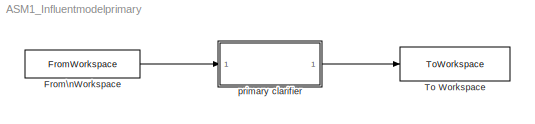
MODEL ASM1_Influentmodelprimary
KIND model
BLOCK [FromWorkspace] From\nWorkspace
  SID = 1
  SampleTime = 0
  VariableName = ASM1_Influent
  ZeroCross = on
BLOCK [ToWorkspace] To Workspace
  MaxDataPoints = inf
  Ports = [1]
  SID = 2
  SampleTime = -1
  VariableName = simout_afterprimary
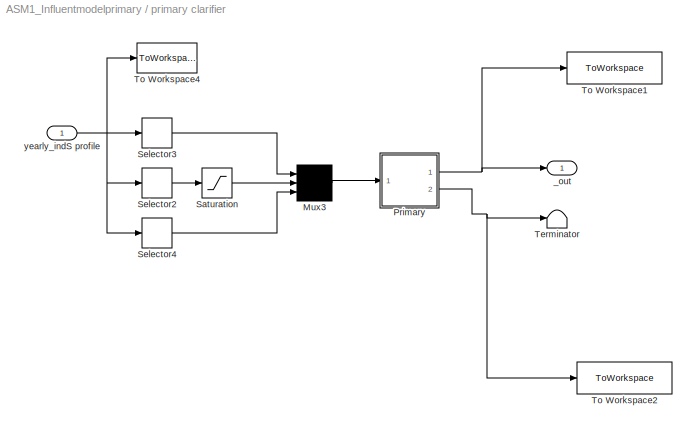
BLOCK [SubSystem] primary clarifier
  FunctionWithSeparateData = off
  MaskHideContents = off
  MinAlgLoopOccurrences = off
  Opaque = off
  Ports = [1, 1]
  PropExecContextOutsideSubsystem = off
  RTWSystemCode = Auto
  RequestExecContextInheritance = off
  SID = 3
BLOCK [Mux] primary clarifier/Mux3
  Inputs = 3
  Ports = [3, 1]
  SID = 5
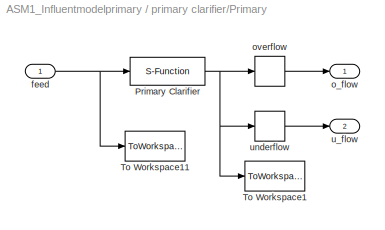
BLOCK [SubSystem] primary clarifier/Primary
  FunctionWithSeparateData = off
  MaskHideContents = off
  MinAlgLoopOccurrences = off
  Opaque = off
  Ports = [1, 2]
  PropExecContextOutsideSubsystem = off
  RTWSystemCode = Auto
  RequestExecContextInheritance = off
  SID = 6
BLOCK [S-Function] primary clarifier/Primary/Primary Clarifier
  EnableBusSupport = off
  FunctionName = primclar_bsm2
  Parameters = XINIT_P,XVEKTOR_P,PAR_P,VOL_P,ASM1_PARS,TEMPMODEL
  Ports = [1, 1]
  SID = 8
BLOCK [ToWorkspace] primary clarifier/Primary/To Workspace1
  MaxDataPoints = inf
  Ports = [1]
  SID = 9
  VariableName = primaryout
BLOCK [ToWorkspace] primary clarifier/Primary/To Workspace11
  MaxDataPoints = inf
  Ports = [1]
  SID = 10
  VariableName = primaryin
BLOCK [Inport] primary clarifier/Primary/feed
  IconDisplay = Port number
  SID = 7
BLOCK [Outport] primary clarifier/Primary/o_flow
  IconDisplay = Port number
  SID = 13
BLOCK [Selector] primary clarifier/Primary/overflow
  IndexOptions = Index vector (dialog)
  Indices = [1:21]
  InputPortWidth = 63
  OutputSizes = 1
  Ports = [1, 1]
  SID = 11
BLOCK [Outport] primary clarifier/Primary/u_flow
  IconDisplay = Port number
  Port = 2
  SID = 14
BLOCK [Selector] primary clarifier/Primary/underflow
  IndexOptions = Index vector (dialog)
  Indices = [22:42]
  InputPortWidth = 63
  OutputSizes = 1
  Ports = [1, 1]
  SID = 12
BLOCK [Saturate] primary clarifier/Saturation
  InputPortMap = u0
  LowerLimit = 0
  Ports = [1, 1]
  SID = 15
  UpperLimit = 60000
BLOCK [Selector] primary clarifier/Selector2
  IndexOptions = Index vector (dialog)
  Indices = [15]
  InputPortWidth = 21
  OutputSizes = 1
  Ports = [1, 1]
  SID = 16
BLOCK [Selector] primary clarifier/Selector3
  IndexOptions = Index vector (dialog)
  Indices = [1:14]
  InputPortWidth = 21
  OutputSizes = 1
  Ports = [1, 1]
  SID = 17
BLOCK [Selector] primary clarifier/Selector4
  IndexOptions = Index vector (dialog)
  Indices = [16:21]
  InputPortWidth = 21
  OutputSizes = 1
  Ports = [1, 1]
  SID = 18
BLOCK [Terminator] primary clarifier/Terminator
  SID = 19
BLOCK [ToWorkspace] primary clarifier/To Workspace1
  MaxDataPoints = inf
  Ports = [1]
  SID = 20
  VariableName = primary_overflow
BLOCK [ToWorkspace] primary clarifier/To Workspace2
  MaxDataPoints = inf
  Ports = [1]
  SID = 21
  VariableName = primary_underflow
BLOCK [ToWorkspace] primary clarifier/To Workspace4
  MaxDataPoints = inf
  Ports = [1]
  SID = 22
  VariableName = in
BLOCK [Outport] primary clarifier/_out
  IconDisplay = Port number
  SID = 23
BLOCK [Inport] primary clarifier/yearly_indS profile
  IconDisplay = Port number
  SID = 4
LINE From\nWorkspace:1 -> primary clarifier:1
LINE primary clarifier/Mux3:1 -> primary clarifier/Primary:1
NET primary clarifier/Primary/Primary Clarifier:1 -> primary clarifier/Primary/To Workspace1:1, primary clarifier/Primary/overflow:1, primary clarifier/Primary/underflow:1
NET primary clarifier/Primary/feed:1 -> primary clarifier/Primary/Primary Clarifier:1, primary clarifier/Primary/To Workspace11:1
LINE primary clarifier/Primary/overflow:1 -> primary clarifier/Primary/o_flow:1
LINE primary clarifier/Primary/underflow:1 -> primary clarifier/Primary/u_flow:1
NET primary clarifier/Primary:1 -> primary clarifier/To Workspace1:1, primary clarifier/_out:1
NET primary clarifier/Primary:2 -> primary clarifier/Terminator:1, primary clarifier/To Workspace2:1
LINE primary clarifier/Saturation:1 -> primary clarifier/Mux3:2
LINE primary clarifier/Selector2:1 -> primary clarifier/Saturation:1
LINE primary clarifier/Selector3:1 -> primary clarifier/Mux3:1
LINE primary clarifier/Selector4:1 -> primary clarifier/Mux3:3
NET primary clarifier/yearly_indS profile:1 -> primary clarifier/Selector2:1, primary clarifier/Selector3:1, primary clarifier/Selector4:1, primary clarifier/To Workspace4:1
LINE primary clarifier:1 -> To Workspace:1
note: NET lines group one-source signal fan-out (src -> all destinations, sorted); 1:1 wires keep LINE
